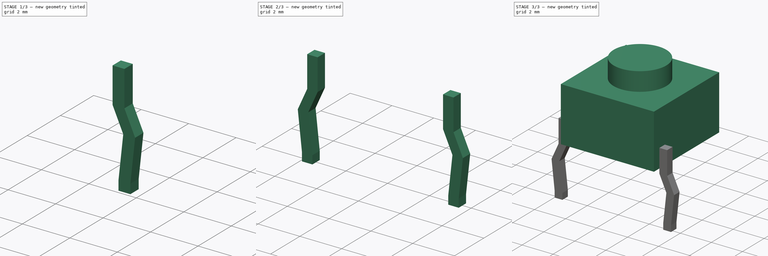
[diagram: build sequence overview — one tinted view per stage of 3, left to right]
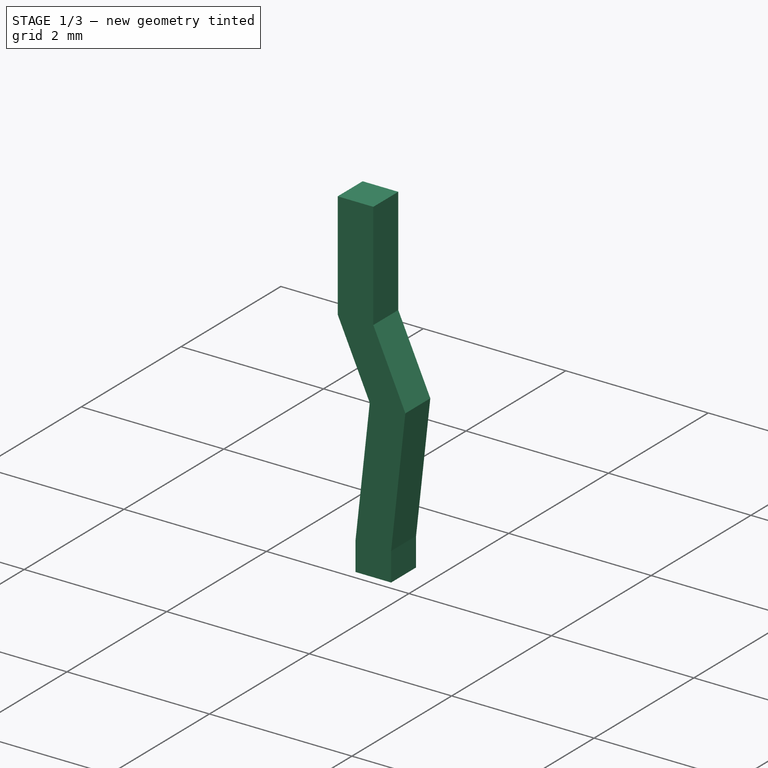
[diagram: stage 1 of 3 — iso view after this stage's code; geometry added in this stage tinted green]
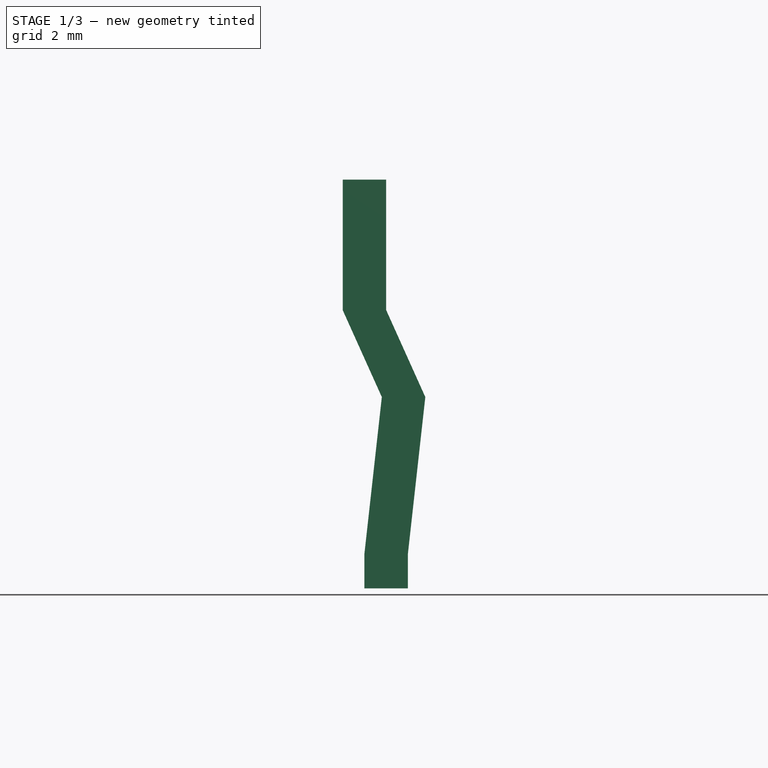
[diagram: stage 1 of 3 — front view after this stage's code; geometry added in this stage tinted green]
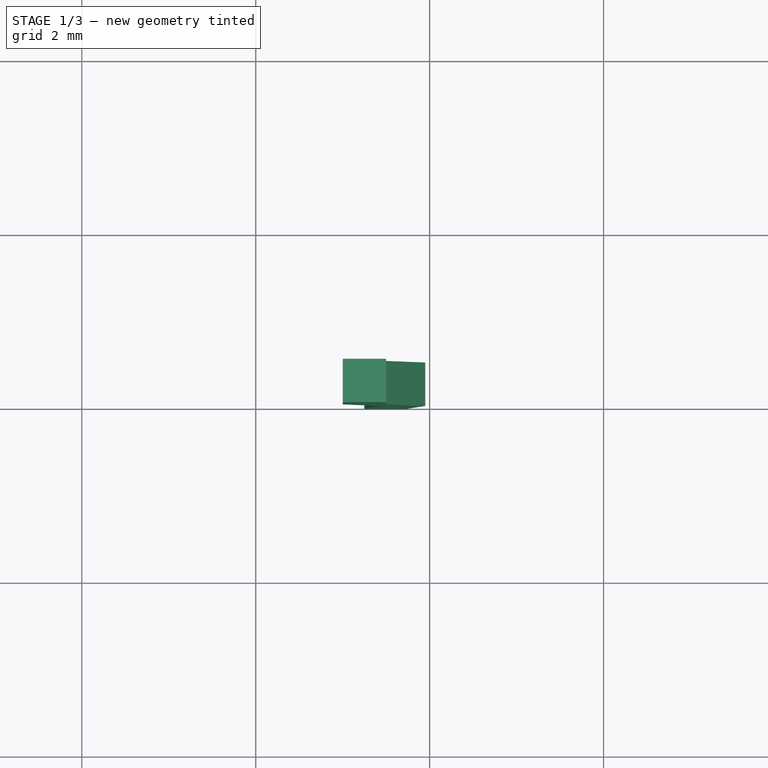
[diagram: stage 1 of 3 — top view after this stage's code; geometry added in this stage tinted green]
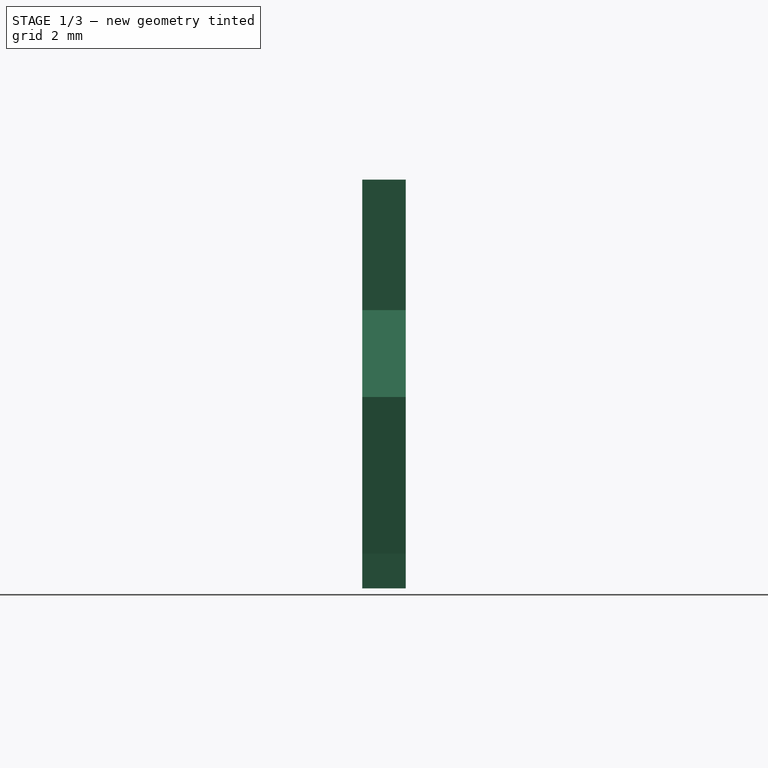
[diagram: stage 1 of 3 — right view after this stage's code; geometry added in this stage tinted green]
FCSTD DOCUMENT  (FreeCAD 1.0R39109 (Git))
Label: push button
License: All rights reserved
LicenseURL: https://en.wikipedia.org/wiki/All_rights_reserved
objects: Sketcher::SketchObject×3, PartDesign::Pad×3, Part::Mirroring×3, PartDesign::Body×2, App::Part×1
note: 20 computed .brp shape members not serialized (recipe doc carries the construction recipe); baked Part::Feature solids carry a one-line shape summary decoded from their .brp

FEATURE [PartDesign::Body] Body  label="몸통"
  AllowCompound = false
  Group = -> [Sketch,Pad,Sketch001,Pad001]
  Origin = -> Origin
  Tip = -> Pad001
FEATURE [Sketcher::SketchObject] Sketch002
  ArcFitTolerance = 1e-06
  AttachmentSupport = -> [XZ_Plane001]
  FullyConstrained = true
  MakeInternals = false
  MapMode = 5
  Placement = pos=(0,0,0) rot=(1,0,0;1.5708rad)
  sketch-geometry (10):
    g0: LineSegment StartX=-3 StartY=1.2 StartZ=0 EndX=-3.5 EndY=1.2 EndZ=0
    g1: LineSegment StartX=-3.5 StartY=1.2 StartZ=0 EndX=-3.5 EndY=-0.3 EndZ=0
    g2: LineSegment StartX=-3.5 StartY=-0.3 StartZ=0 EndX=-3.95 EndY=-1.29999 EndZ=0
    g3: LineSegment StartX=-3.95 StartY=-1.29999 StartZ=0 EndX=-3.75 EndY=-3.09999 EndZ=0
    g4: LineSegment StartX=-3.75 StartY=-3.09999 StartZ=0 EndX=-3.75 EndY=-3.5 EndZ=0
    g5: LineSegment StartX=-3.75 StartY=-3.5 StartZ=0 EndX=-3.25 EndY=-3.5 EndZ=0
    g6: LineSegment StartX=-3.25 StartY=-3.5 StartZ=0 EndX=-3.25 EndY=-3.09999 EndZ=0
    g7: LineSegment StartX=-3.25 StartY=-3.09999 StartZ=0 EndX=-3.45 EndY=-1.29999 EndZ=0
    g8: LineSegment StartX=-3.45 StartY=-1.29999 StartZ=0 EndX=-3 EndY=-0.299995 EndZ=0
    g9: LineSegment StartX=-3 StartY=-0.299995 StartZ=0 EndX=-3 EndY=1.2 EndZ=0
  constraints (30):
    c: Coincident(g1,g0)
    c: Vertical(g1)
    c: Coincident(g2,g1)
    c: Coincident(g6,g5)
    c: Vertical(g6)
    c: Coincident(g7,g6)
    c: Coincident(g8,g7)
    c: Coincident(g9,g8)
    c: Coincident(g9,g0)
    c: Vertical(g9)
    c: Horizontal(g0)
    c: Coincident(g4,g5)
    c: Coincident(g3,g4)
    c: Coincident(g2,g3)
    c: Horizontal(g5)
    c: Vertical(g4)
    c: Distance(g0,g-2) = 3
    c: Distance(g5,g-1) = 3.5
    c: Distance(g5,g-2) = 3.25
    c: Distance(g5,g5) = 0.5
    c: Equal(g0,g5)
    c: Horizontal(g2,g7)
    c: Distance(g2,g7) = 0.5
    c: Distance(g1,g8) = 0.5
    c: Horizontal(g6,g3)
    c: DistanceX(g2,g3) = 0.2
    c: DistanceY(g7,g8) = 1
    c: Distance(g1,g-1) = 0.3
    c: DistanceY(g3,g2) = 1.8
    c: DistanceY(g1,g1) = 1.5
FEATURE [PartDesign::Pad] Pad002
  Direction = (0,-1,2e-16)
  Length = 0.5
  Length2 = 10
  Placement = pos=(0,0,0) rot=(1,0,0;1.5708rad)
  Profile = -> Sketch002
  ReferenceAxis = -> Sketch002 [N_Axis]
  Refine = true
  Suppressed = false
  Type = 0
FEATURE [PartDesign::Body] Body001  label="foot"
  AllowCompound = false
  Group = -> [Sketch002,Pad002]
  Origin = -> Origin001
  Placement = pos=(0,2.5,0) rot=(0,0,1;0rad)
  Tip = -> Pad002
FEATURE [Part::Mirroring] Part__Mirroring  label="foot (Mirror #1)"
  Base = (0,0,0)
  Normal = (1,0,0)
  Source = -> Body001
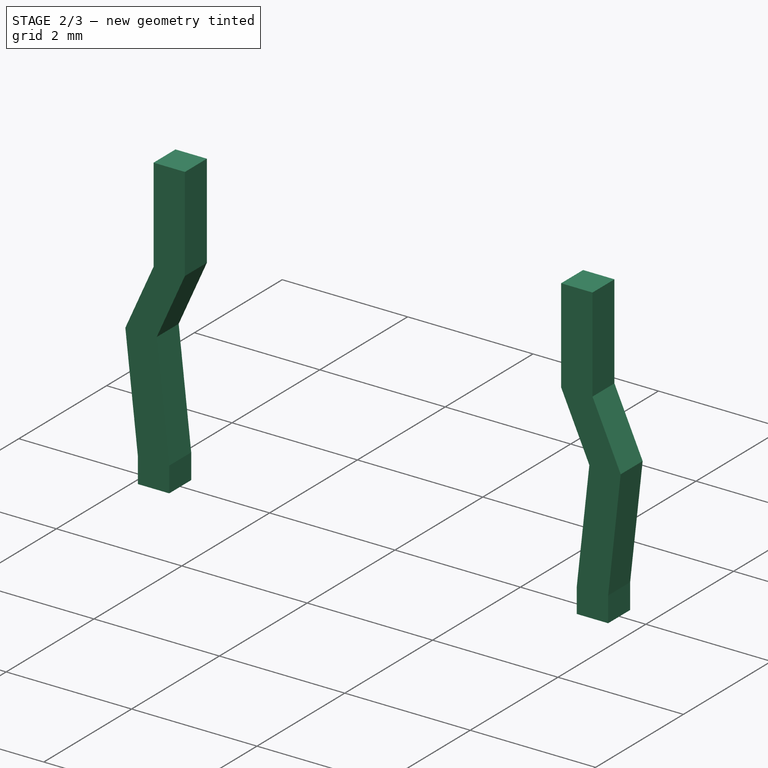
[diagram: stage 2 of 3 — iso view after this stage's code; geometry added in this stage tinted green]
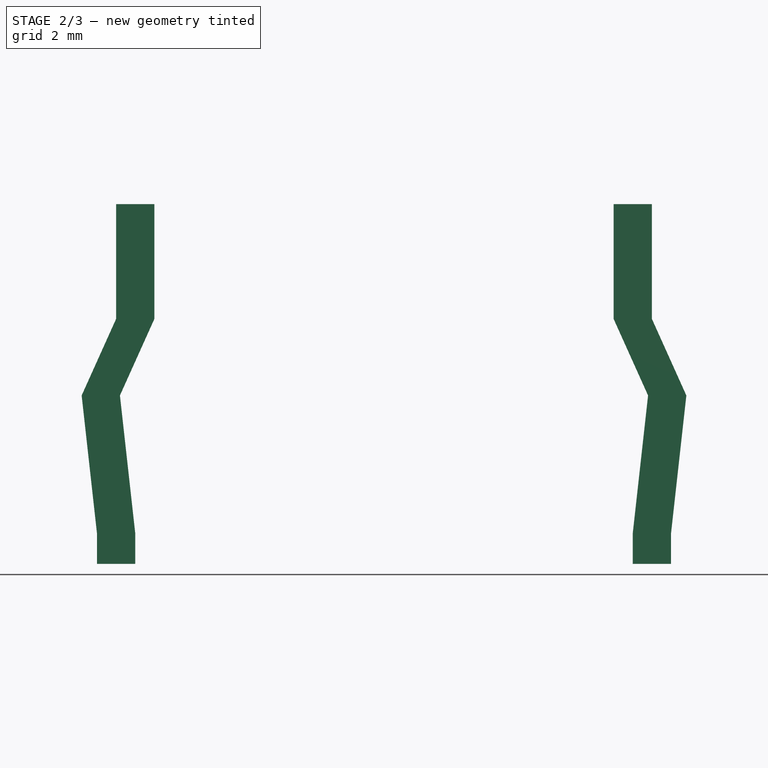
[diagram: stage 2 of 3 — front view after this stage's code; geometry added in this stage tinted green]
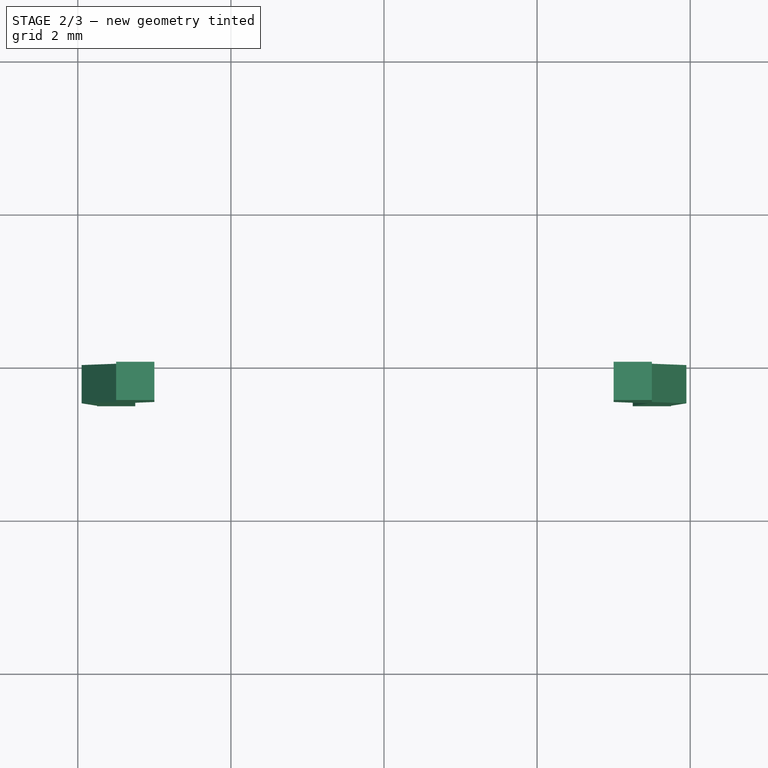
[diagram: stage 2 of 3 — top view after this stage's code; geometry added in this stage tinted green]
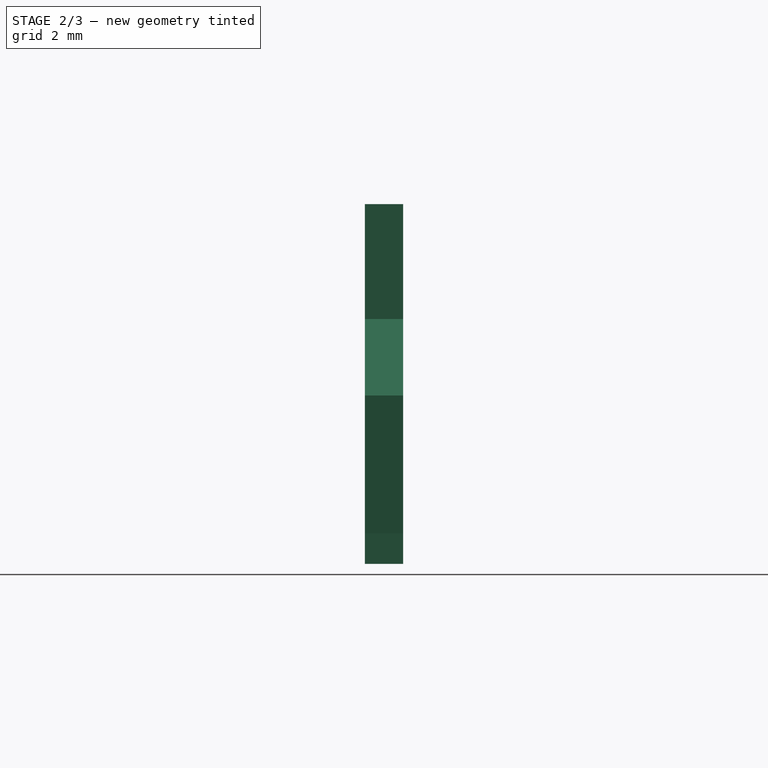
[diagram: stage 2 of 3 — right view after this stage's code; geometry added in this stage tinted green]
FEATURE [Part::Mirroring] Part__Mirroring001  label="foot (Mirror #2)"
  Base = (0,0,0)
  Normal = (0,1,0)
  Source = -> Body001
FEATURE [Part::Mirroring] Part__Mirroring002  label="foot (Mirror #3)"
  Base = (0,0,0)
  Normal = (0,1,0)
  Source = -> Part__Mirroring
FEATURE [App::Part] Part
  Group = -> [Body,Body001,Part__Mirroring002,Part__Mirroring,Part__Mirroring001]
  Origin = -> Origin002
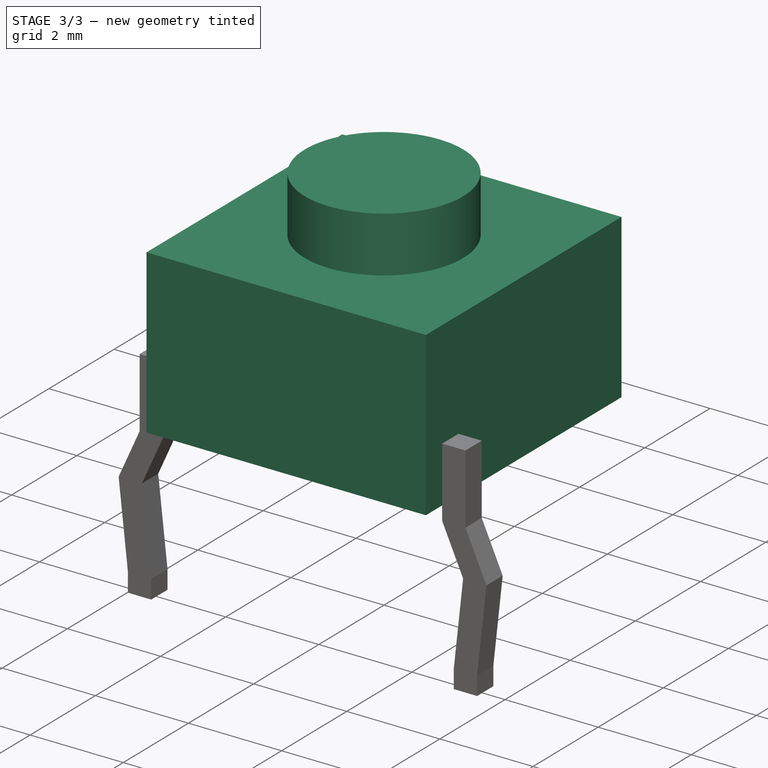
[diagram: stage 3 of 3 — iso view after this stage's code; geometry added in this stage tinted green]
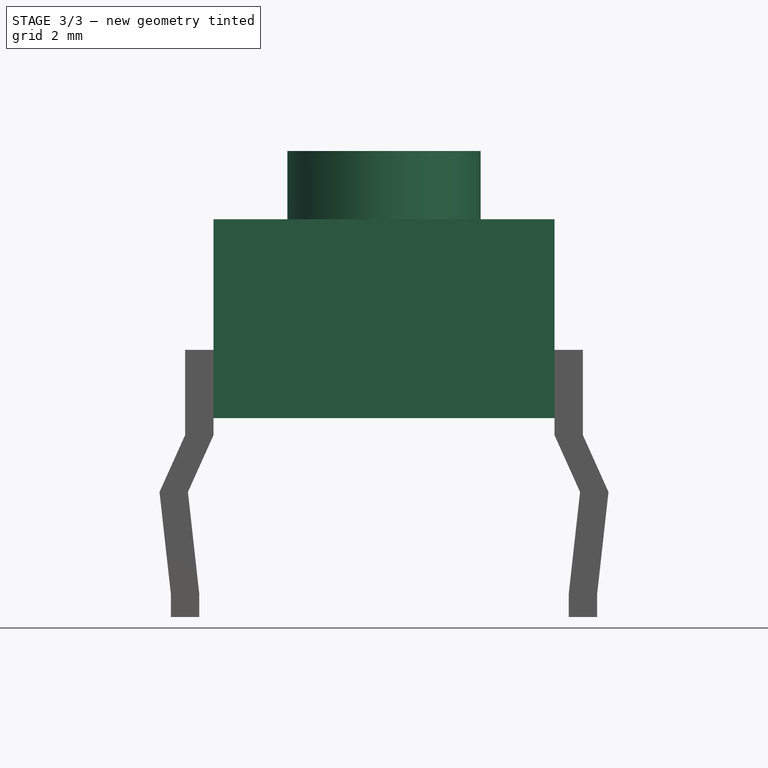
[diagram: stage 3 of 3 — front view after this stage's code; geometry added in this stage tinted green]
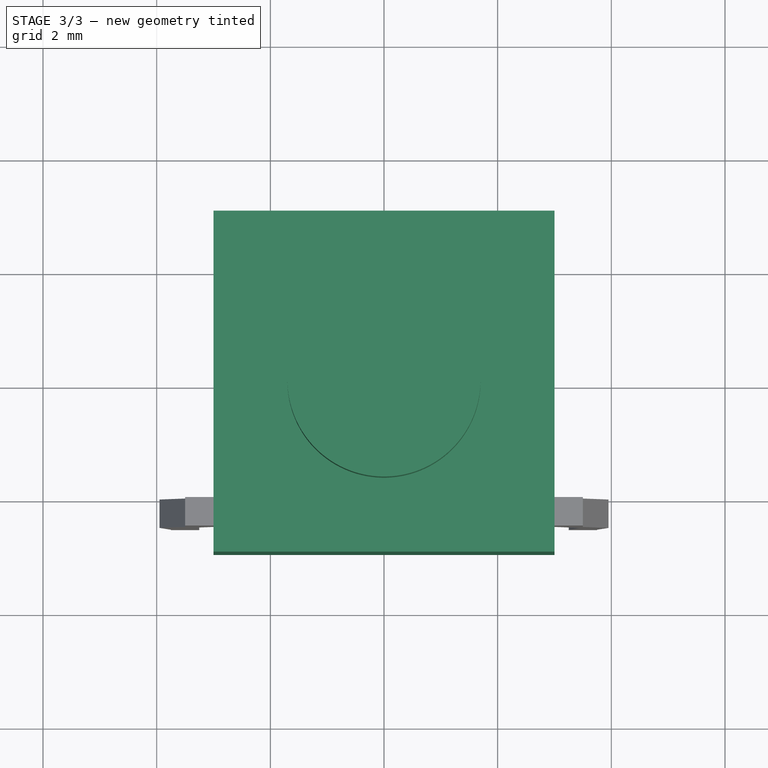
[diagram: stage 3 of 3 — top view after this stage's code; geometry added in this stage tinted green]
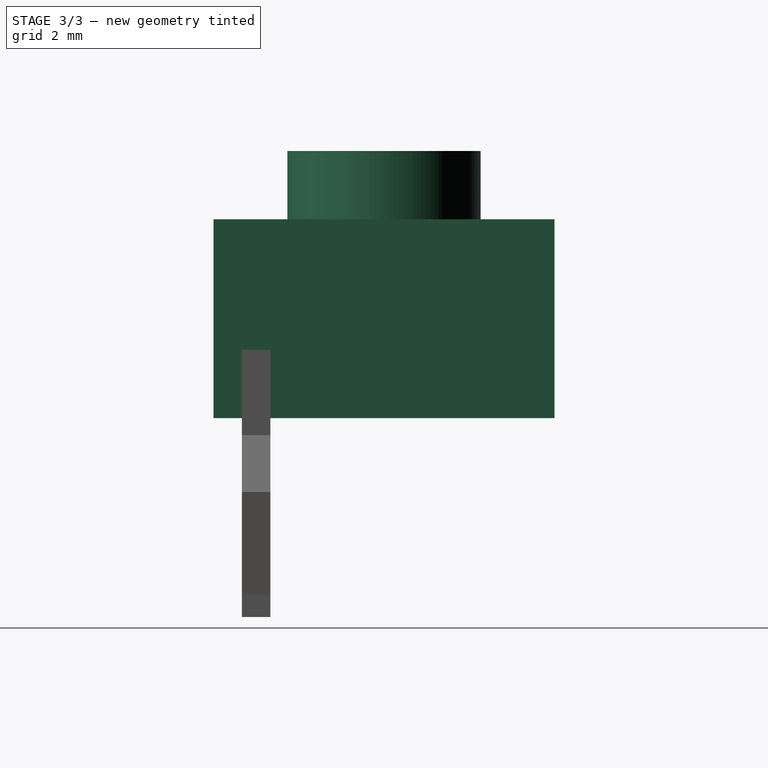
[diagram: stage 3 of 3 — right view after this stage's code; geometry added in this stage tinted green]
FEATURE [Sketcher::SketchObject] Sketch
  ArcFitTolerance = 1e-06
  AttachmentSupport = -> [XY_Plane]
  FullyConstrained = true
  MakeInternals = false
  MapMode = 5
  sketch-geometry (4):
    g0: LineSegment StartX=-3 StartY=3 StartZ=0 EndX=-3 EndY=-3 EndZ=0
    g1: LineSegment StartX=-3 StartY=-3 StartZ=0 EndX=3 EndY=-3 EndZ=0
    g2: LineSegment StartX=3 StartY=-3 StartZ=0 EndX=3 EndY=3 EndZ=0
    g3: LineSegment StartX=3 StartY=3 StartZ=0 EndX=-3 EndY=3 EndZ=0
  constraints (11):
    c: Coincident(g0,g1)
    c: Coincident(g1,g2)
    c: Coincident(g2,g3)
    c: Coincident(g3,g0)
    c: Vertical(g0)
    c: Vertical(g2)
    c: Horizontal(g1)
    c: Horizontal(g3)
    c: Symmetric(g0,g1,g-1)
    c: DistanceX(g3,g3) = 6
    c: DistanceY(g2,g2) = 6
FEATURE [PartDesign::Pad] Pad
  Direction = (0,0,1)
  Length = 3.5
  Length2 = 10
  Profile = -> Sketch
  ReferenceAxis = -> Sketch [N_Axis]
  Refine = true
  Suppressed = false
  Type = 0
FEATURE [Sketcher::SketchObject] Sketch001
  ArcFitTolerance = 1e-06
  AttachmentSupport = -> [Pad]
  FullyConstrained = true
  MakeInternals = false
  MapMode = 5
  Placement = pos=(0,0,3.5) rot=(0,0,1;0rad)
  sketch-geometry (1):
    g0: Circle CenterX=0 CenterY=0 CenterZ=0 NormalX=0 NormalY=0 NormalZ=1 AngleXU=0 Radius=1.7
  constraints (2):
    c: Coincident(g0,g-1)
    c: Diameter(g0) = 3.4
FEATURE [PartDesign::Pad] Pad001
  BaseFeature = -> Pad
  Direction = (0,0,1)
  Length = 1.2
  Length2 = 10
  Profile = -> Sketch001
  ReferenceAxis = -> Sketch001 [N_Axis]
  Refine = true
  Suppressed = false
  Type = 0
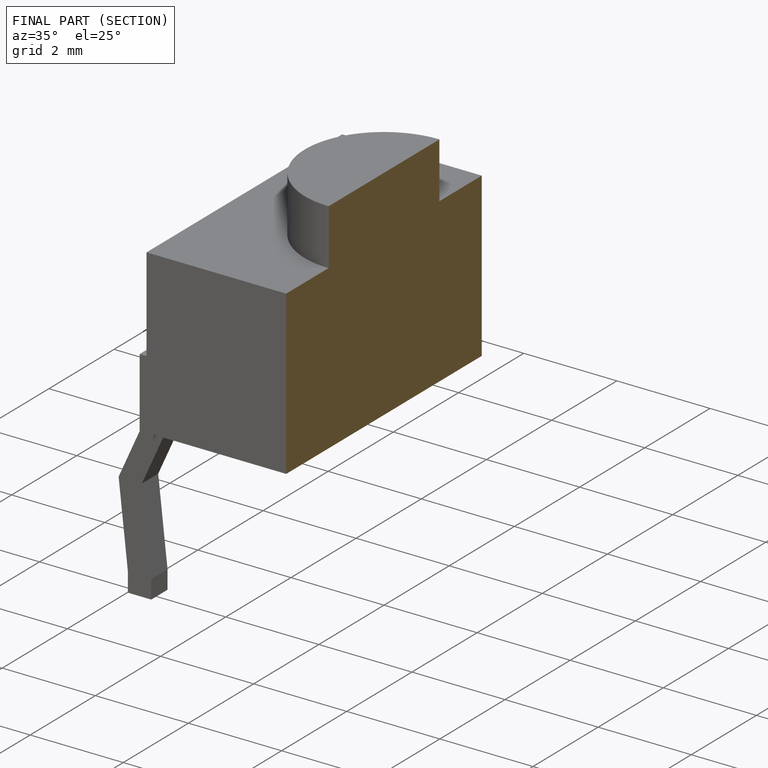
[diagram: finished part — half-section view (interior)]
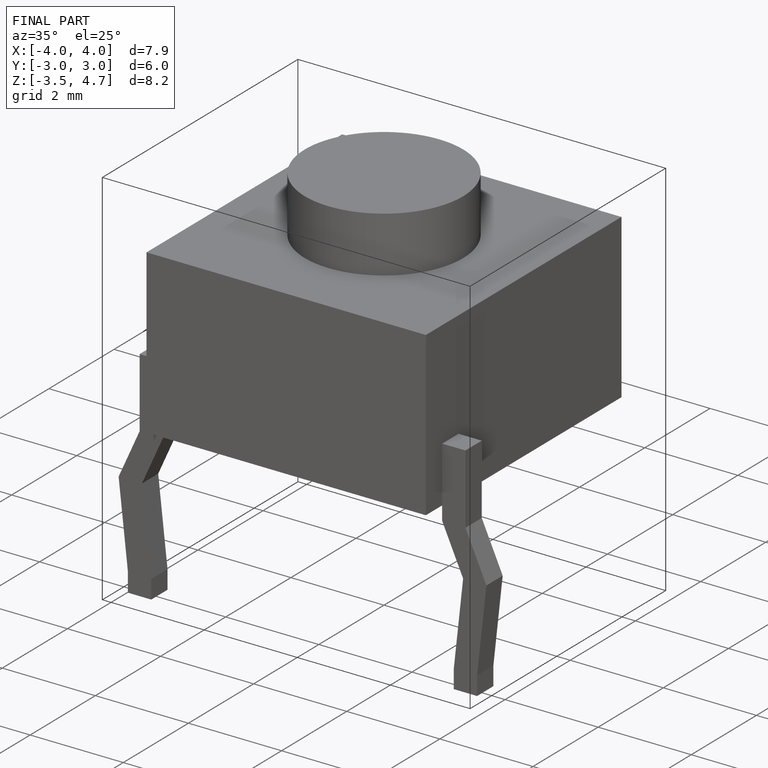
[diagram: finished part — iso view with bounding-box wireframe]
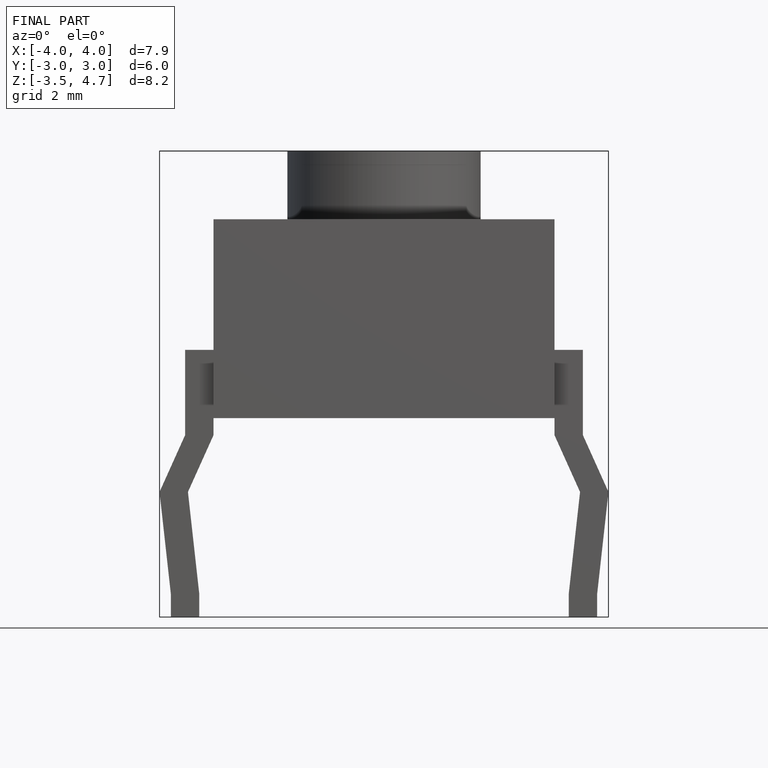
[diagram: finished part — front view with bounding-box wireframe]
